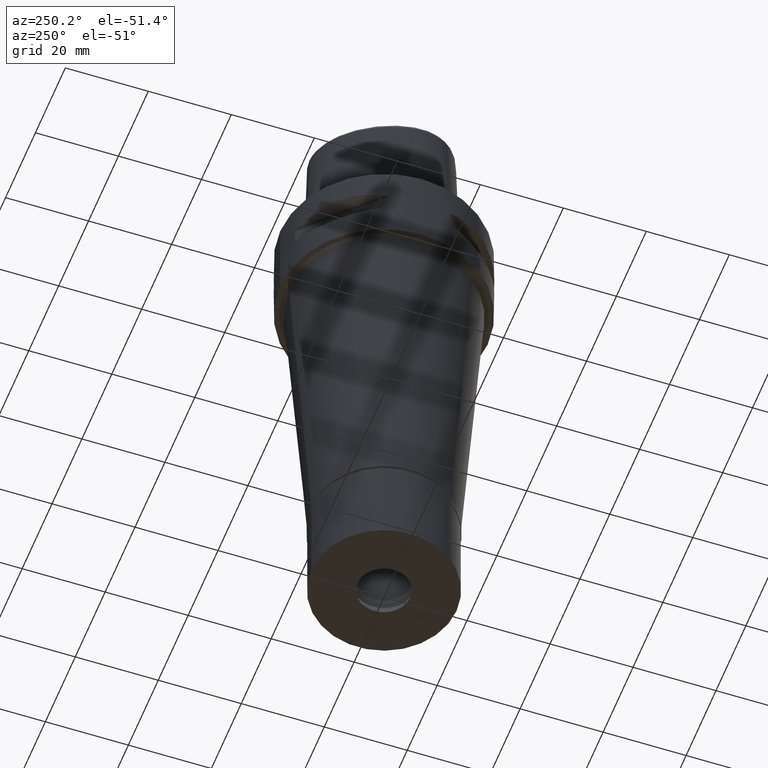
[diagram: clean part render]
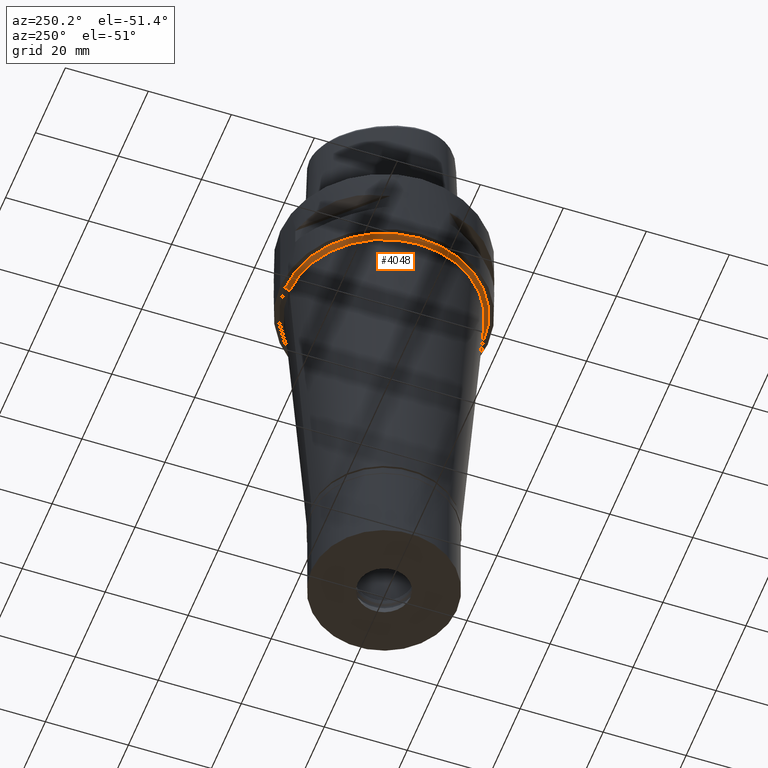
[diagram: same view with one face highlighted and labeled with its STEP entity id]
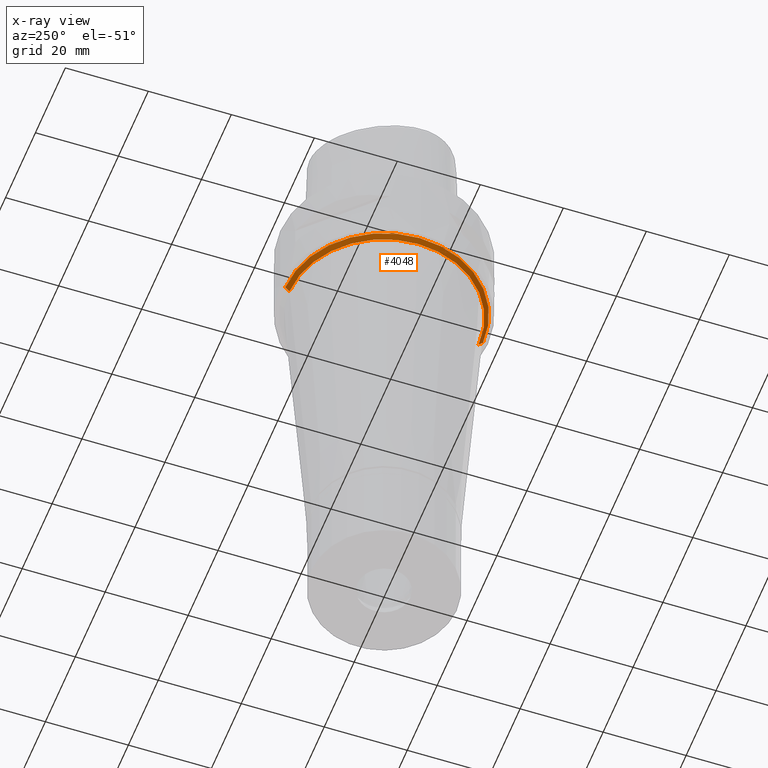
[diagram: x-ray of the same camera — body ghosted, the highlighted face saturated]
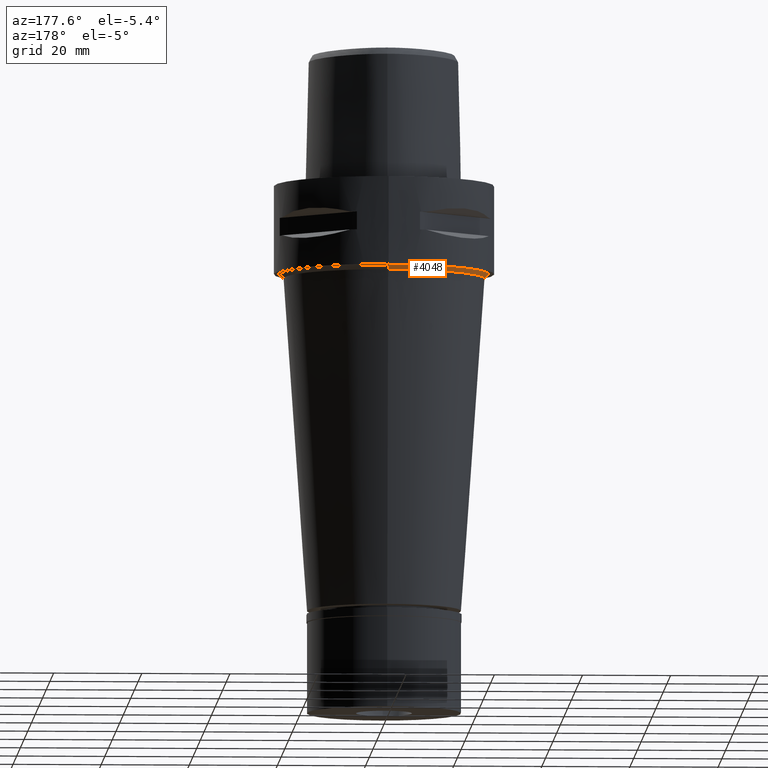
[diagram: same view with one face highlighted and labeled with its STEP entity id]
A machine part, auxiliary view. The second image highlights one B-rep face of the part: STEP entity #4048.
The next image is the same camera in x-ray: the body ghosted, the highlighted face saturated — about 0% of this face is hidden behind the body in this view.
A second angle (auxiliary view) of the same face is appended — the face is thin or edge-on in the first view.
In plain terms, the highlighted conical surface has half-angle 45 deg.
Its self-contained STEP definition (entity closure, byte-faithful):
#73 = VECTOR ( 'NONE', #319, 1000.000000000000000 ) ;
#126 = EDGE_CURVE ( 'NONE', #2828, #3802, #654, .T. ) ;
#314 = CIRCLE ( 'NONE', #1844, 23.79345966412000024 ) ;
#319 = DIRECTION ( 'NONE',  ( 0.0000000000000000000, -0.7071067811861975194, -0.7071067811868976261 ) ) ;
#654 = CIRCLE ( 'NONE', #1626, 22.79345966412000024 ) ;
#678 = CARTESIAN_POINT ( 'NONE',  ( 0.0000000000000000000, 0.0000000000000000000, -21.00000000000000000 ) ) ;
#938 = DIRECTION ( 'NONE',  ( 0.0000000000000000000, -1.000000000000000000, 0.0000000000000000000 ) ) ;
#967 = DIRECTION ( 'NONE',  ( 0.0000000000000000000, 0.0000000000000000000, -1.000000000000000000 ) ) ;
#1186 = AXIS2_PLACEMENT_3D ( 'NONE', #3003, #4152, #1519 ) ;
#1230 = EDGE_CURVE ( 'NONE', #3045, #2828, #4317, .T. ) ;
#1309 = ORIENTED_EDGE ( 'NONE', *, *, #3988, .T. ) ;
#1473 = FACE_OUTER_BOUND ( 'NONE', #3595, .T. ) ;
#1519 = DIRECTION ( 'NONE',  ( 0.0000000000000000000, 1.000000000000000000, 0.0000000000000000000 ) ) ;
#1626 = AXIS2_PLACEMENT_3D ( 'NONE', #678, #3067, #4587 ) ;
#1841 = CARTESIAN_POINT ( 'NONE',  ( 0.0000000000000000000, 0.0000000000000000000, -20.00000000000000000 ) ) ;
#1844 = AXIS2_PLACEMENT_3D ( 'NONE', #1841, #967, #938 ) ;
#2043 = CARTESIAN_POINT ( 'NONE',  ( 0.0000000000000000000, -23.79345966412000024, -20.00000000000000000 ) ) ;
#2125 = CARTESIAN_POINT ( 'NONE',  ( 0.0000000000000000000, 22.79345966412000024, -21.00000000000000000 ) ) ;
#2133 = CARTESIAN_POINT ( 'NONE',  ( 0.0000000000000000000, 23.79345966412000024, -20.00000000000000000 ) ) ;
#2160 = ORIENTED_EDGE ( 'NONE', *, *, #1230, .F. ) ;
#2815 = ORIENTED_EDGE ( 'NONE', *, *, #126, .F. ) ;
#2828 = VERTEX_POINT ( 'NONE', #3537 ) ;
#2972 = CARTESIAN_POINT ( 'NONE',  ( 0.0000000000000000000, 23.79345966412000024, -20.00000000000000000 ) ) ;
#3003 = CARTESIAN_POINT ( 'NONE',  ( 0.0000000000000000000, 0.0000000000000000000, -20.50000000000000000 ) ) ;
#3045 = VERTEX_POINT ( 'NONE', #3790 ) ;
#3067 = DIRECTION ( 'NONE',  ( 0.0000000000000000000, 0.0000000000000000000, -1.000000000000000000 ) ) ;
#3072 = VECTOR ( 'NONE', #3939, 1000.000000000000000 ) ;
#3363 = CONICAL_SURFACE ( 'NONE', #1186, 23.29345966412000024, 0.7853981633972997312 ) ;
#3503 = ORIENTED_EDGE ( 'NONE', *, *, #4084, .T. ) ;
#3537 = CARTESIAN_POINT ( 'NONE',  ( 0.0000000000000000000, -22.79345966412000024, -21.00000000000000000 ) ) ;
#3595 = EDGE_LOOP ( 'NONE', ( #2815, #2160, #3503, #1309 ) ) ;
#3790 = CARTESIAN_POINT ( 'NONE',  ( 0.0000000000000000000, -23.79345966412000024, -20.00000000000000000 ) ) ;
#3802 = VERTEX_POINT ( 'NONE', #2125 ) ;
#3939 = DIRECTION ( 'NONE',  ( 0.0000000000000000000, 0.7071067811861975194, -0.7071067811868976261 ) ) ;
#3988 = EDGE_CURVE ( 'NONE', #4410, #3802, #4102, .T. ) ;
#4048 = ADVANCED_FACE ( 'NONE', ( #1473 ), #3363, .T. ) ;
#4084 = EDGE_CURVE ( 'NONE', #3045, #4410, #314, .T. ) ;
#4102 = LINE ( 'NONE', #2972, #73 ) ;
#4152 = DIRECTION ( 'NONE',  ( 0.0000000000000000000, 0.0000000000000000000, 1.000000000000000000 ) ) ;
#4317 = LINE ( 'NONE', #2043, #3072 ) ;
#4410 = VERTEX_POINT ( 'NONE', #2133 ) ;
#4587 = DIRECTION ( 'NONE',  ( 0.0000000000000000000, -1.000000000000000000, 0.0000000000000000000 ) ) ;